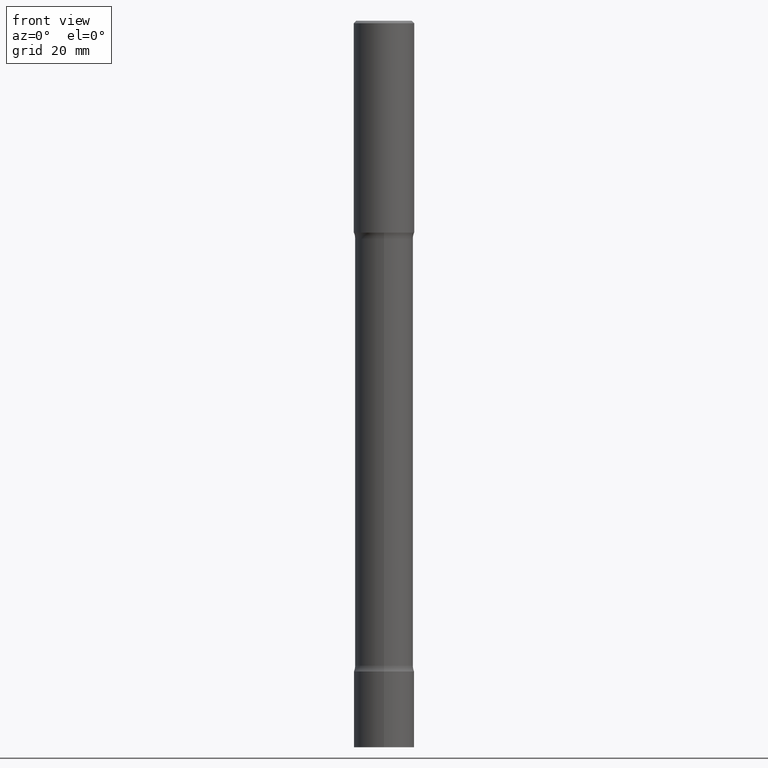
[diagram: clean part render]
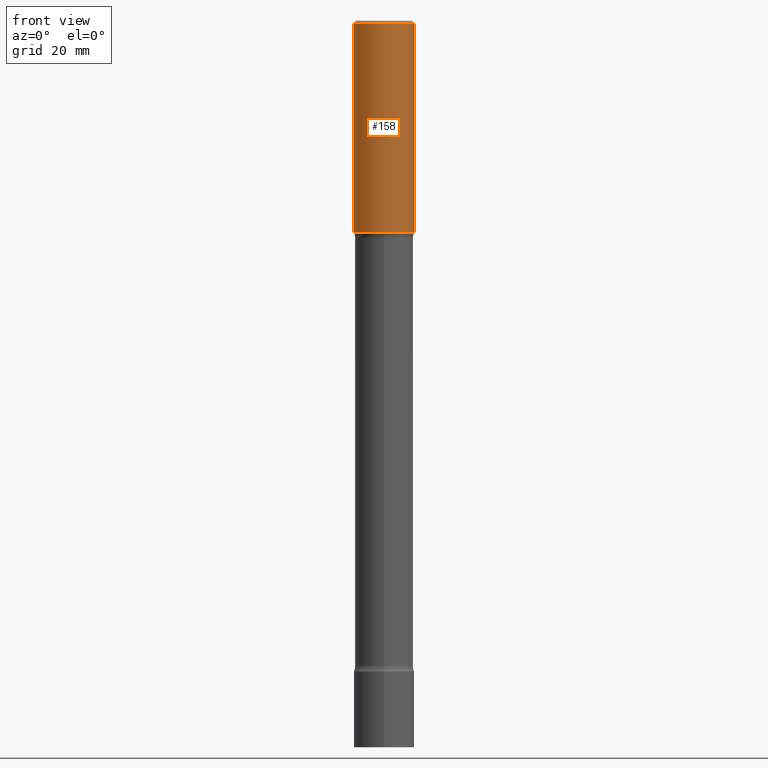
[diagram: same view with one face highlighted and labeled with its STEP entity id]
A machine part, front view. The second image highlights one B-rep face of the part: STEP entity #158.
In plain terms, the highlighted cylindrical surface (edge-blend (fillet) strip) has radius 6.35 mm, axis along (-0, 0, 1).
Its self-contained STEP definition (entity closure, byte-faithful):
#1 = CYLINDRICAL_SURFACE ( 'NONE', #378, 0.2499999999999998612 ) ;
#22 = VERTEX_POINT ( 'NONE', #40 ) ;
#40 = CARTESIAN_POINT ( 'NONE',  ( 0.2499999999999997224, -1.784954126219743822E-15, -0.02000000000000000042 ) ) ;
#44 = CARTESIAN_POINT ( 'NONE',  ( 0.2500000000000000000, -7.855833012397075293E-15, -1.750000000000001332 ) ) ;
#45 = EDGE_CURVE ( 'NONE', #275, #137, #131, .T. ) ;
#57 = EDGE_LOOP ( 'NONE', ( #84, #259, #350, #287 ) ) ;
#64 = DIRECTION ( 'NONE',  ( -2.445468806185136877E-29, 3.491481338843145188E-15, 1.000000000000000000 ) ) ;
#84 = ORIENTED_EDGE ( 'NONE', *, *, #271, .F. ) ;
#92 = LINE ( 'NONE', #207, #445 ) ;
#100 = DIRECTION ( 'NONE',  ( 1.000000000000000000, -6.982962677686266711E-15, 0.000000000000000000 ) ) ;
#120 = LINE ( 'NONE', #358, #272 ) ;
#122 = DIRECTION ( 'NONE',  ( -2.445468806185136877E-29, 3.491481338843145188E-15, 1.000000000000000000 ) ) ;
#131 = CIRCLE ( 'NONE', #453, 0.2500000000000000000 ) ;
#137 = VERTEX_POINT ( 'NONE', #44 ) ;
#143 = CIRCLE ( 'NONE', #201, 0.2499999999999997224 ) ;
#152 = CARTESIAN_POINT ( 'NONE',  ( 0.000000000000000000, 0.000000000000000000, 0.000000000000000000 ) ) ;
#158 = ADVANCED_FACE ( 'NONE', ( #186 ), #1, .T. ) ;
#186 = FACE_OUTER_BOUND ( 'NONE', #57, .T. ) ;
#188 = DIRECTION ( 'NONE',  ( 1.000000000000000000, -6.982962677686266711E-15, 0.000000000000000000 ) ) ;
#201 = AXIS2_PLACEMENT_3D ( 'NONE', #282, #456, #100 ) ;
#207 = CARTESIAN_POINT ( 'NONE',  ( 0.2499999999999998612, -1.745740669421565692E-15, 1.219044193948983248E-29 ) ) ;
#228 = DIRECTION ( 'NONE',  ( 1.000000000000000000, -6.982962677686266711E-15, 4.876176775795935793E-29 ) ) ;
#235 = CARTESIAN_POINT ( 'NONE',  ( -0.2499999999999999722, -1.313604145475934309E-15, -1.750000000000001332 ) ) ;
#259 = ORIENTED_EDGE ( 'NONE', *, *, #45, .T. ) ;
#271 = EDGE_CURVE ( 'NONE', #275, #297, #120, .T. ) ;
#272 = VECTOR ( 'NONE', #122, 39.37007874015748143 ) ;
#275 = VERTEX_POINT ( 'NONE', #235 ) ;
#282 = CARTESIAN_POINT ( 'NONE',  ( 4.890937612370273159E-31, -6.982962677686291609E-17, -0.02000000000000000042 ) ) ;
#287 = ORIENTED_EDGE ( 'NONE', *, *, #455, .F. ) ;
#294 = CARTESIAN_POINT ( 'NONE',  ( 4.279570410823991847E-29, -6.110092342975509404E-15, -1.750000000000001332 ) ) ;
#297 = VERTEX_POINT ( 'NONE', #318 ) ;
#318 = CARTESIAN_POINT ( 'NONE',  ( -0.2499999999999997224, 1.675911042644701999E-15, -0.02000000000000000042 ) ) ;
#350 = ORIENTED_EDGE ( 'NONE', *, *, #359, .T. ) ;
#358 = CARTESIAN_POINT ( 'NONE',  ( -0.2499999999999998612, 1.776356839400249479E-15, -1.229733772563725745E-29 ) ) ;
#359 = EDGE_CURVE ( 'NONE', #137, #22, #92, .T. ) ;
#378 = AXIS2_PLACEMENT_3D ( 'NONE', #152, #466, #228 ) ;
#445 = VECTOR ( 'NONE', #64, 39.37007874015748143 ) ;
#453 = AXIS2_PLACEMENT_3D ( 'NONE', #294, #468, #188 ) ;
#455 = EDGE_CURVE ( 'NONE', #297, #22, #143, .T. ) ;
#456 = DIRECTION ( 'NONE',  ( -2.445468806185136597E-29, 3.491481338843145583E-15, 1.000000000000000000 ) ) ;
#466 = DIRECTION ( 'NONE',  ( -2.445468806185136597E-29, 3.491481338843145583E-15, 1.000000000000000000 ) ) ;
#468 = DIRECTION ( 'NONE',  ( -2.445468806185136597E-29, 3.491481338843145583E-15, 1.000000000000000000 ) ) ;